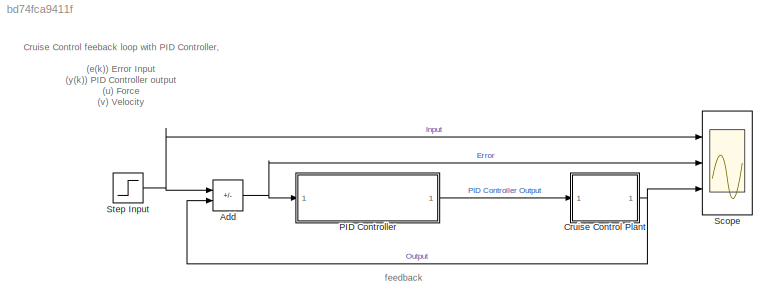
MODEL slx_bd74fca9411f
KIND model
CONFIG AbsTol = auto
CONFIG EnableMultiTasking = off
CONFIG FixedStep = auto
CONFIG MaxStep = auto
CONFIG MinStep = auto
CONFIG PreLoadFcn = clearvars;\nm = 1000;\nb = 50;\nTs = 0.01;\nu = 100;\nKp = 890;\nKi = 110;\nKd = 80;
CONFIG RelTol = 1e-3
CONFIG SampleTimeConstraint = Unconstrained
CONFIG SolverName = FixedStepAuto
CONFIG StartTime = 0.0
CONFIG StopTime = 30
BLOCK [Sum] Add
  IconShape = rectangular
  Inputs = +-
  Ports = [2, 1]
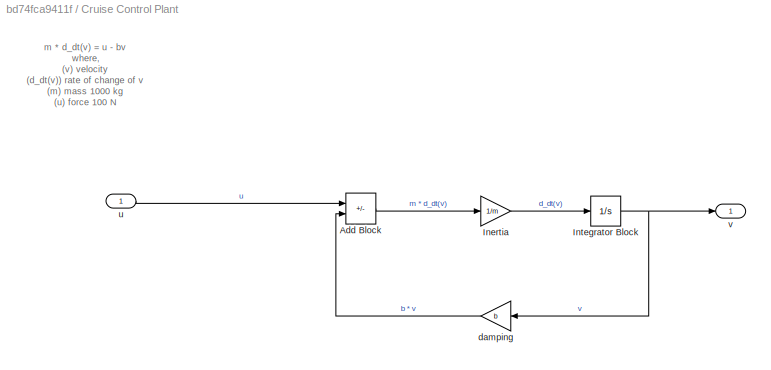
BLOCK [SubSystem] Cruise Control Plant
  Ports = [1, 1]
  RequestExecContextInheritance = off
BLOCK [Sum] Cruise Control Plant/Add Block
  IconShape = rectangular
  Inputs = +-
  Ports = [2, 1]
BLOCK [Gain] Cruise Control Plant/Inertia
  Gain = 1/m
BLOCK [Integrator] Cruise Control Plant/Integrator Block 
  Ports = [1, 1]
BLOCK [Gain] Cruise Control Plant/damping
  Gain = b
BLOCK [Inport] Cruise Control Plant/u
BLOCK [Outport] Cruise Control Plant/v
BLOCK [ModelReference] PID Controller
  ModelNameDialog = pid_controller.slx
  ModelReferenceVersion = 1.84
  Ports = [1, 1]
BLOCK [Scope] Scope 
  Floating = off
  NumInputPorts = 3
  Ports = [3]
  ScopeSpecificationString = Simulink.scopes.TimeScopeBlockCfg('CurrentConfiguration', extmgr.ConfigurationSet(extmgr.Configuration('Core','General UI',true),extmgr.Configuration('Core','Source UI',true),extmgr.Configuration('Sources','WiredSimulink',true),extmgr.Configuration('Visuals','Time Domain',true,'SerializedDisplays',{struct('MinYLimReal','-12.5','MaxYLimReal','112.5','YLabelReal','','MinYLimMag','0.00000','MaxYLimMa...<+2796ch>
BLOCK [Step] Step Input
  After = 100
  SampleTime = 0.01
ANNOTATION (root): Cruise Control feeback loop with PID Controller, (e(k)) Error Input (y(k)) PID Controller output (u) Force (v) Velocity
ANNOTATION (root): feedback
ANNOTATION Cruise Control Plant: m * d_dt(v) = u - bv where, (v) velocity (d_dt(v)) rate of change of v (m) mass 1000 kg (u) force 100 N (b) damping 50 N.sec/m
NET Add:1 -> PID Controller:1, Scope :2
LINE Cruise Control Plant/Add Block:1 -> Cruise Control Plant/Inertia:1
LINE Cruise Control Plant/Inertia:1 -> Cruise Control Plant/Integrator Block :1
NET Cruise Control Plant/Integrator Block :1 -> Cruise Control Plant/damping:1, Cruise Control Plant/v:1
LINE Cruise Control Plant/damping:1 -> Cruise Control Plant/Add Block:2
LINE Cruise Control Plant/u:1 -> Cruise Control Plant/Add Block:1
NET Cruise Control Plant:1 -> Add:2, Scope :3
LINE PID Controller:1 -> Cruise Control Plant:1
NET Step Input:1 -> Add:1, Scope :1
note: NET lines group one-source signal fan-out (src -> all destinations, sorted); 1:1 wires keep LINE
